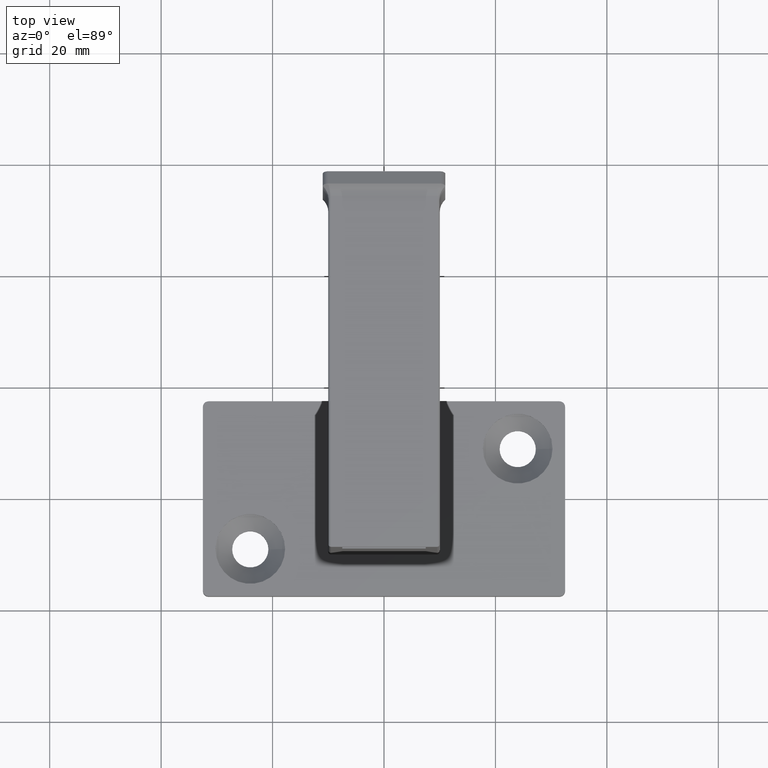
[diagram: clean part render]
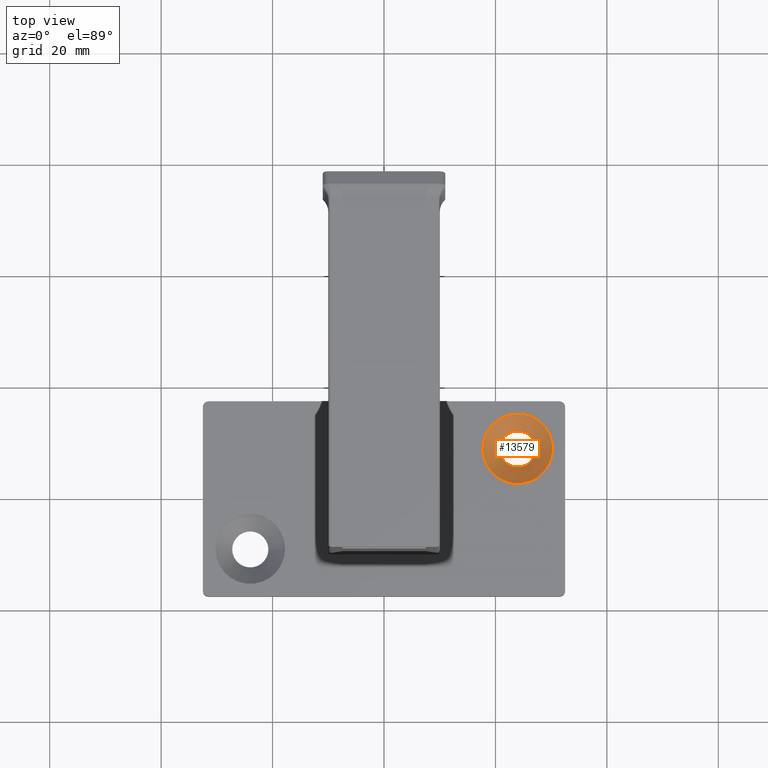
[diagram: same view with one face highlighted and labeled with its STEP entity id]
A machine part, top view. The second image highlights one B-rep face of the part: STEP entity #13579.
In plain terms, the highlighted conical surface has half-angle 45 deg.
Its self-contained STEP definition (entity closure, byte-faithful):
#918 = FACE_OUTER_BOUND ( 'NONE', #8460, .T. ) ;
#925 = CARTESIAN_POINT ( 'NONE',  ( 23.99999999999999645, 9.000000000000000000, 2.000000000000218492 ) ) ;
#1078 = DIRECTION ( 'NONE',  ( 1.000000000000000000, 0.000000000000000000, 0.000000000000000000 ) ) ;
#2239 = CIRCLE ( 'NONE', #13476, 3.249999999999999556 ) ;
#3315 = FACE_BOUND ( 'NONE', #4982, .T. ) ;
#3944 = CIRCLE ( 'NONE', #11618, 6.249999999999808153 ) ;
#4982 = EDGE_LOOP ( 'NONE', ( #9517 ) ) ;
#6519 = DIRECTION ( 'NONE',  ( -0.000000000000000000, -0.000000000000000000, 1.000000000000000000 ) ) ;
#6596 = EDGE_CURVE ( 'NONE', #12827, #12827, #3944, .T. ) ;
#7311 = CARTESIAN_POINT ( 'NONE',  ( 23.99999999999999645, 9.000000000000000000, 5.000000000000110134 ) ) ;
#7745 = ORIENTED_EDGE ( 'NONE', *, *, #6596, .T. ) ;
#8375 = CARTESIAN_POINT ( 'NONE',  ( 27.24999999999999645, 9.000000000000000000, 2.000000000000218492 ) ) ;
#8460 = EDGE_LOOP ( 'NONE', ( #7745 ) ) ;
#9517 = ORIENTED_EDGE ( 'NONE', *, *, #11899, .F. ) ;
#10320 = VERTEX_POINT ( 'NONE', #8375 ) ;
#11136 = DIRECTION ( 'NONE',  ( 1.000000000000000000, 0.000000000000000000, 0.000000000000000000 ) ) ;
#11618 = AXIS2_PLACEMENT_3D ( 'NONE', #13876, #11633, #1078 ) ;
#11633 = DIRECTION ( 'NONE',  ( -0.000000000000000000, -0.000000000000000000, 1.000000000000000000 ) ) ;
#11730 = DIRECTION ( 'NONE',  ( -0.000000000000000000, -0.000000000000000000, 1.000000000000000000 ) ) ;
#11899 = EDGE_CURVE ( 'NONE', #10320, #10320, #2239, .T. ) ;
#12129 = CONICAL_SURFACE ( 'NONE', #14648, 6.249999999999808153, 0.7853981633974344012 ) ;
#12827 = VERTEX_POINT ( 'NONE', #14039 ) ;
#12870 = DIRECTION ( 'NONE',  ( 1.000000000000000000, 0.000000000000000000, 0.000000000000000000 ) ) ;
#13476 = AXIS2_PLACEMENT_3D ( 'NONE', #925, #6519, #11136 ) ;
#13579 = ADVANCED_FACE ( 'NONE', ( #3315, #918 ), #12129, .F. ) ;
#13876 = CARTESIAN_POINT ( 'NONE',  ( 23.99999999999999645, 9.000000000000000000, 5.000000000000110134 ) ) ;
#14039 = CARTESIAN_POINT ( 'NONE',  ( 30.24999999999980460, 9.000000000000000000, 5.000000000000110134 ) ) ;
#14648 = AXIS2_PLACEMENT_3D ( 'NONE', #7311, #11730, #12870 ) ;